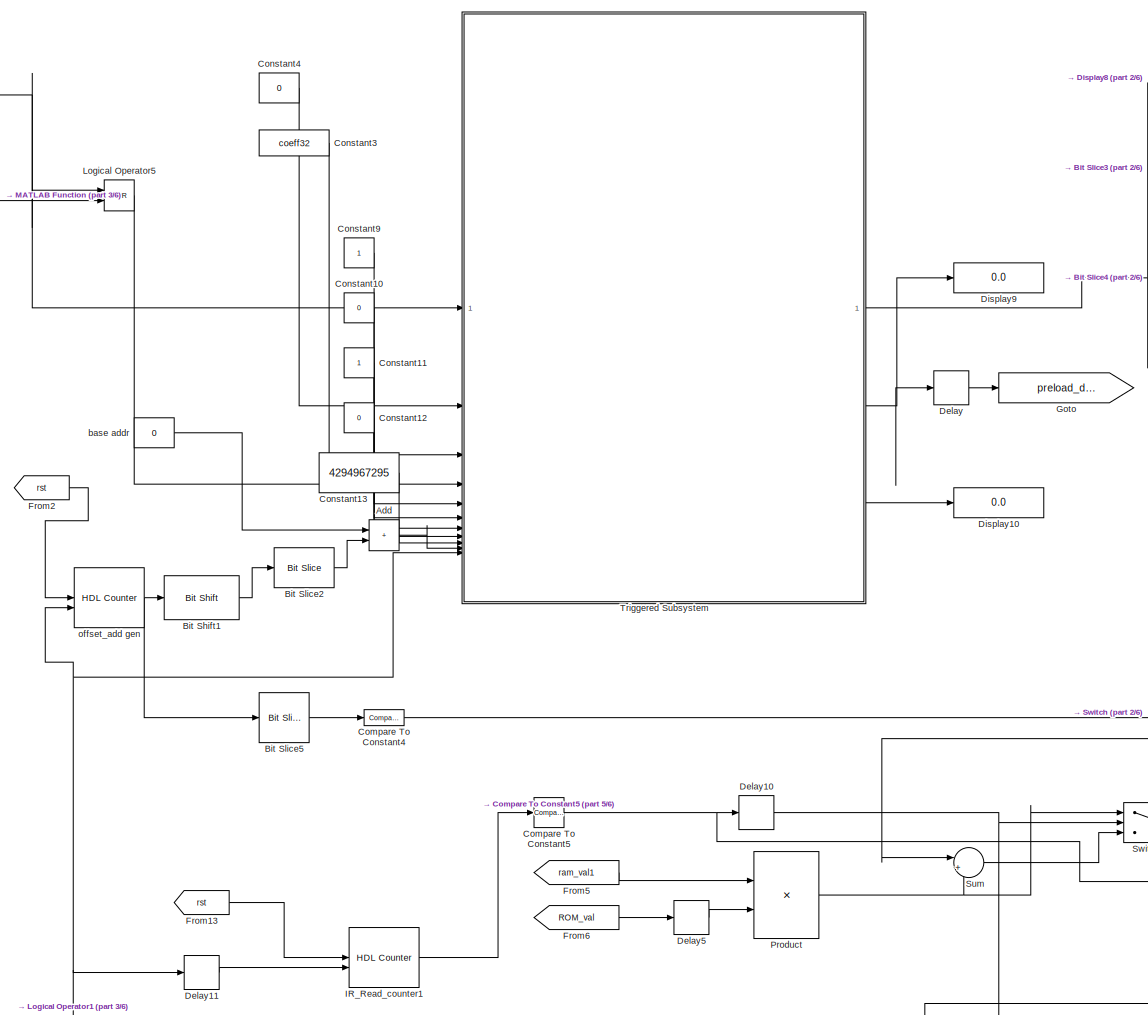
[diagram: root canvas - part 1/6, top center region]
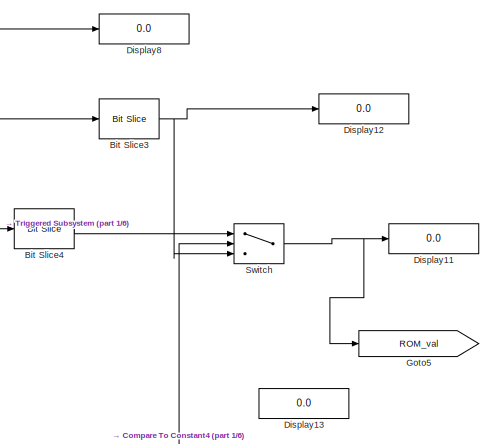
[diagram: root canvas - part 2/6, top right region]
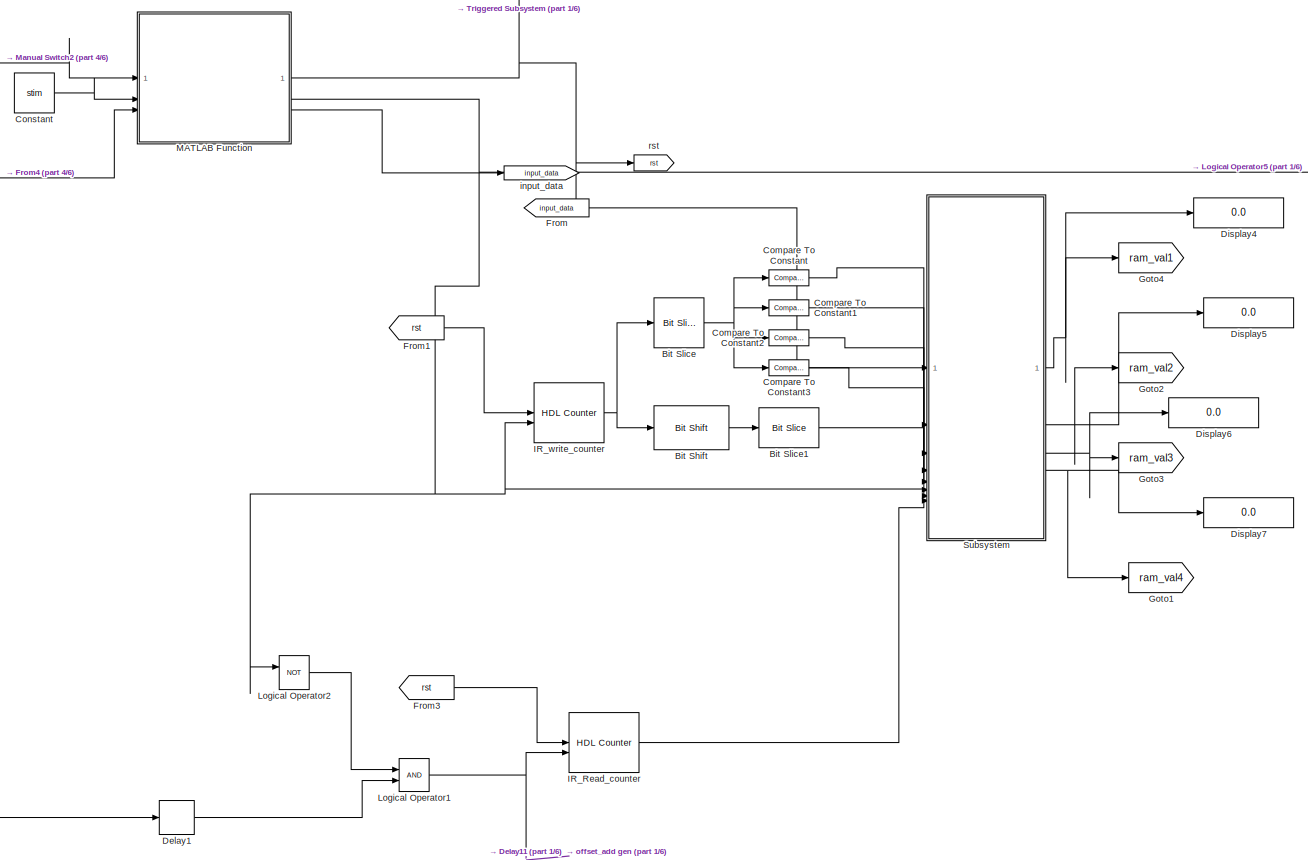
[diagram: root canvas - part 3/6, middle left region]
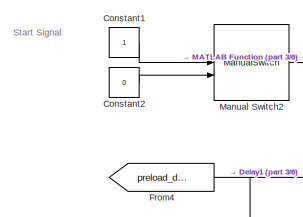
[diagram: root canvas - part 4/6, top left region]
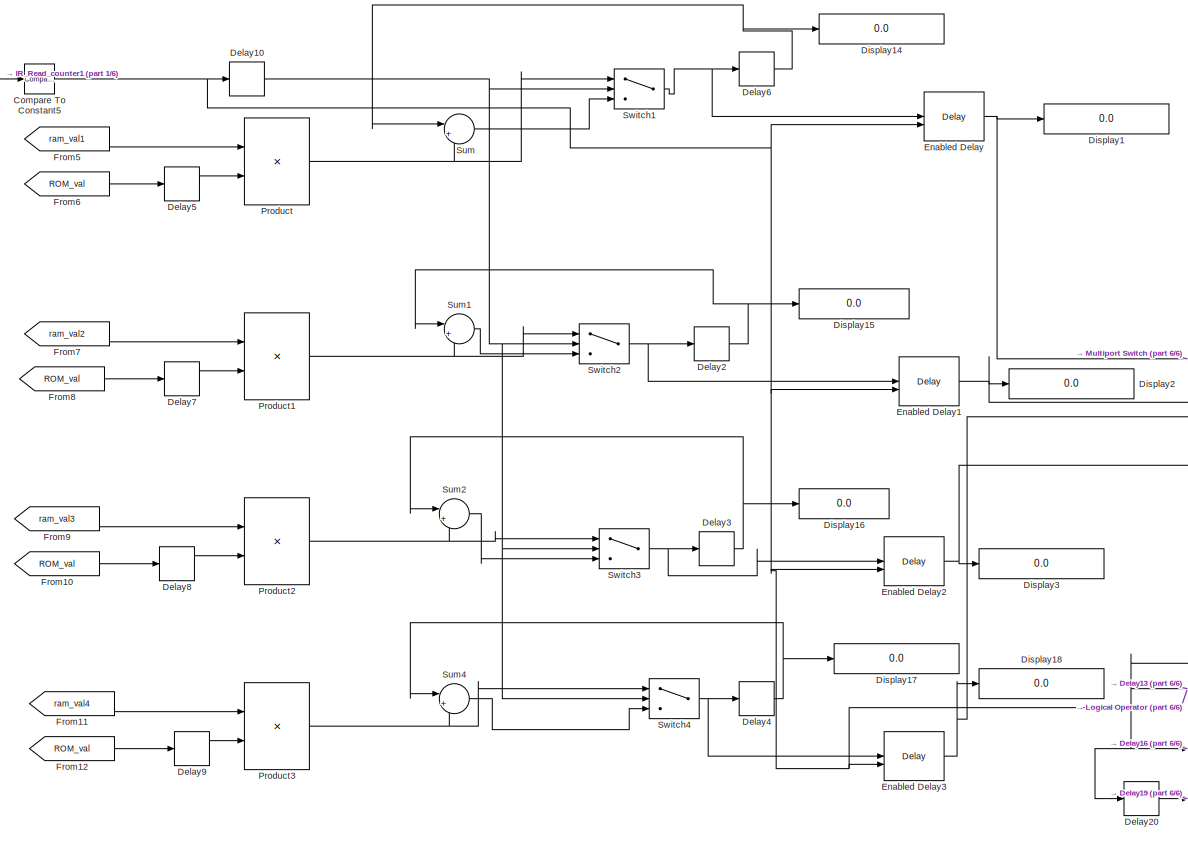
[diagram: root canvas - part 5/6, bottom center region]
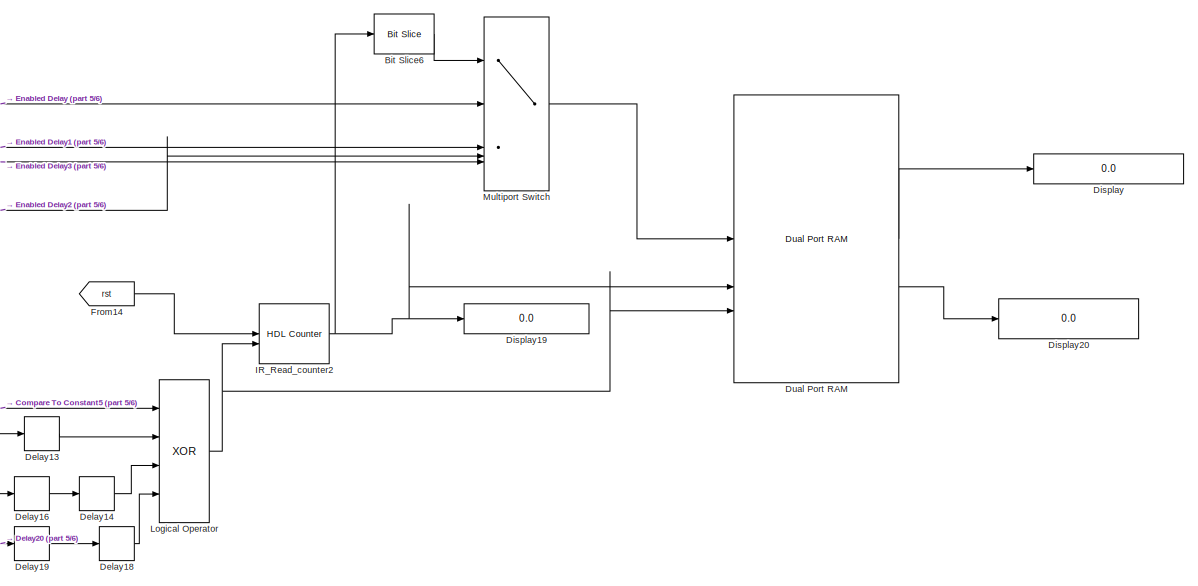
[diagram: root canvas - part 6/6, bottom right region]
MODEL slx_77660154b613
KIND model
CONFIG AbsTol = auto
CONFIG EnableMultiTasking = off
CONFIG FixedStep = 1
CONFIG MaxStep = auto
CONFIG MinStep = auto
CONFIG RelTol = 1e-3
CONFIG SampleTimeConstraint = Unconstrained
CONFIG SolverName = FixedStepDiscrete
CONFIG StartTime = 0.0
CONFIG StopTime = 2000
BLOCK [Sum] Add
  IconShape = rectangular
BLOCK [Reference] Bit Shift  REF=hdlsllib/Logic and Bit
Operations/Bit Shift
  SourceBlock = hdlsllib/Logic and Bit\nOperations/Bit Shift
  SourceType = Bit Shift
BLOCK [Reference] Bit Shift1  REF=hdlsllib/Logic and Bit
Operations/Bit Shift
  SourceBlock = hdlsllib/Logic and Bit\nOperations/Bit Shift
  SourceType = Bit Shift
BLOCK [Reference] Bit Slice  REF=hdlsllib/Logic and Bit
Operations/Bit Slice
  SourceBlock = hdlsllib/Logic and Bit\nOperations/Bit Slice
  SourceType = Bit Slice
BLOCK [Reference] Bit Slice1  REF=hdlsllib/Logic and Bit
Operations/Bit Slice
  SourceBlock = hdlsllib/Logic and Bit\nOperations/Bit Slice
  SourceType = Bit Slice
BLOCK [Reference] Bit Slice2  REF=hdlsllib/Logic and Bit
Operations/Bit Slice
  SourceBlock = hdlsllib/Logic and Bit\nOperations/Bit Slice
  SourceType = Bit Slice
BLOCK [Reference] Bit Slice3  REF=hdlsllib/Logic and Bit
Operations/Bit Slice
  SourceBlock = hdlsllib/Logic and Bit\nOperations/Bit Slice
  SourceType = Bit Slice
BLOCK [Reference] Bit Slice4  REF=hdlsllib/Logic and Bit
Operations/Bit Slice
  SourceBlock = hdlsllib/Logic and Bit\nOperations/Bit Slice
  SourceType = Bit Slice
BLOCK [Reference] Bit Slice5  REF=hdlsllib/Logic and Bit
Operations/Bit Slice
  SourceBlock = hdlsllib/Logic and Bit\nOperations/Bit Slice
  SourceType = Bit Slice
BLOCK [Reference] Bit Slice6  REF=hdlsllib/Logic and Bit
Operations/Bit Slice
  SourceBlock = hdlsllib/Logic and Bit\nOperations/Bit Slice
  SourceType = Bit Slice
BLOCK [Reference] Compare To Constant  REF=hdlsllib/Logic and Bit
Operations/Compare
To Constant
  SourceBlock = hdlsllib/Logic and Bit\nOperations/Compare\nTo Constant
  SourceType = Compare To Constant
BLOCK [Reference] Compare To Constant1  REF=hdlsllib/Logic and Bit
Operations/Compare
To Constant
  SourceBlock = hdlsllib/Logic and Bit\nOperations/Compare\nTo Constant
  SourceType = Compare To Constant
BLOCK [Reference] Compare To Constant2  REF=hdlsllib/Logic and Bit
Operations/Compare
To Constant
  SourceBlock = hdlsllib/Logic and Bit\nOperations/Compare\nTo Constant
  SourceType = Compare To Constant
BLOCK [Reference] Compare To Constant3  REF=hdlsllib/Logic and Bit
Operations/Compare
To Constant
  SourceBlock = hdlsllib/Logic and Bit\nOperations/Compare\nTo Constant
  SourceType = Compare To Constant
BLOCK [Reference] Compare To Constant4  REF=hdlsllib/Logic and Bit
Operations/Compare
To Constant
  SourceBlock = hdlsllib/Logic and Bit\nOperations/Compare\nTo Constant
  SourceType = Compare To Constant
BLOCK [Reference] Compare To Constant5  REF=simulink/Logic and Bit
Operations/Compare
To Constant
  SourceBlock = simulink/Logic and Bit\nOperations/Compare\nTo Constant
  SourceType = Compare To Constant
BLOCK [Constant] Constant
  SampleTime = -1
  Value = stim
  VectorParams1D = off
BLOCK [Constant] Constant1
  OutDataTypeStr = boolean
BLOCK [Constant] Constant10
  OutDataTypeStr = boolean
  Value = 0
BLOCK [Constant] Constant11
  OutDataTypeStr = boolean
BLOCK [Constant] Constant12
  OutDataTypeStr = boolean
  Value = 0
BLOCK [Constant] Constant13
  OutDataTypeStr = uint32
  SampleTime = -1
  Value = 4294967295
  VectorParams1D = off
BLOCK [Constant] Constant2
  OutDataTypeStr = boolean
  Value = 0
BLOCK [Constant] Constant3
  OutDataTypeStr = uint32
  SampleTime = -1
  Value = coeff32
  VectorParams1D = off
BLOCK [Constant] Constant4
  OutDataTypeStr = uint16
  SampleTime = -1
  Value = 0
  VectorParams1D = off
BLOCK [Constant] Constant9
  OutDataTypeStr = boolean
BLOCK [Delay] Delay
  DelayLength = 1
  InitialCondition = 0
  InputPortMap = u0
BLOCK [Delay] Delay1
  DelayLength = 1
  InitialCondition = 0
  InputPortMap = u0
BLOCK [Delay] Delay10
  DelayLength = 1
  InitialCondition = 0
  InputPortMap = u0
BLOCK [Delay] Delay11
  DelayLength = 1
  InitialCondition = 0
  InputPortMap = u0
BLOCK [Delay] Delay13
  DelayLength = 1
  InitialCondition = 0
  InputPortMap = u0
BLOCK [Delay] Delay14
  DelayLength = 1
  InitialCondition = 0
  InputPortMap = u0
BLOCK [Delay] Delay16
  DelayLength = 1
  InitialCondition = 0
  InputPortMap = u0
BLOCK [Delay] Delay18
  DelayLength = 1
  InitialCondition = 0
  InputPortMap = u0
BLOCK [Delay] Delay19
  DelayLength = 1
  InitialCondition = 0
  InputPortMap = u0
BLOCK [Delay] Delay2
  DelayLength = 1
  InitialCondition = 0
  InputPortMap = u0
BLOCK [Delay] Delay20
  DelayLength = 1
  InitialCondition = 0
  InputPortMap = u0
BLOCK [Delay] Delay3
  DelayLength = 1
  InitialCondition = 0
  InputPortMap = u0
BLOCK [Delay] Delay4
  DelayLength = 1
  InitialCondition = 0
  InputPortMap = u0
BLOCK [Delay] Delay5
  DelayLength = 1
  InitialCondition = 0
  InputPortMap = u0
BLOCK [Delay] Delay6
  DelayLength = 1
  InitialCondition = 0
  InputPortMap = u0
BLOCK [Delay] Delay7
  DelayLength = 1
  InitialCondition = 0
  InputPortMap = u0
BLOCK [Delay] Delay8
  DelayLength = 1
  InitialCondition = 0
  InputPortMap = u0
BLOCK [Delay] Delay9
  DelayLength = 1
  InitialCondition = 0
  InputPortMap = u0
BLOCK [Display] Display
  Decimation = 1
  Format = long
BLOCK [Display] Display1
  Decimation = 1
  Format = long
BLOCK [Display] Display10
  Decimation = 1
BLOCK [Display] Display11
  Decimation = 1
BLOCK [Display] Display12
  Decimation = 1
BLOCK [Display] Display13
  Decimation = 1
BLOCK [Display] Display14
  Decimation = 1
  Format = long
BLOCK [Display] Display15
  Decimation = 1
  Format = long
BLOCK [Display] Display16
  Decimation = 1
  Format = long
BLOCK [Display] Display17
  Decimation = 1
  Format = long
BLOCK [Display] Display18
  Decimation = 1
  Format = long
BLOCK [Display] Display19
  Decimation = 1
  Format = long
BLOCK [Display] Display2
  Decimation = 1
  Format = long
BLOCK [Display] Display20
  Decimation = 1
  Format = long
BLOCK [Display] Display3
  Decimation = 1
  Format = long
BLOCK [Display] Display4
  Decimation = 1
BLOCK [Display] Display5
  Decimation = 1
BLOCK [Display] Display6
  Decimation = 1
BLOCK [Display] Display7
  Decimation = 1
BLOCK [Display] Display8
  Decimation = 1
BLOCK [Display] Display9
  Decimation = 1
BLOCK [Reference] Dual Port RAM  REF=hdlsllib/HDL RAMs/Dual Port RAM
  SourceBlock = hdlsllib/HDL RAMs/Dual Port RAM
  SourceType = Dual-port RAM
BLOCK [Delay] Enabled Delay
  DelayLength = 1
  InputPortMap = u0,e6
  ShowEnablePort = on
BLOCK [Delay] Enabled Delay1
  DelayLength = 1
  InputPortMap = u0,e6
  ShowEnablePort = on
BLOCK [Delay] Enabled Delay2
  DelayLength = 1
  InputPortMap = u0,e6
  ShowEnablePort = on
BLOCK [Delay] Enabled Delay3
  DelayLength = 1
  InputPortMap = u0,e6
  ShowEnablePort = on
BLOCK [From] From
  GotoTag = input_data
BLOCK [From] From1
  GotoTag = rst
BLOCK [From] From10
  GotoTag = ROM_val
BLOCK [From] From11
  GotoTag = ram_val4
BLOCK [From] From12
  GotoTag = ROM_val
BLOCK [From] From13
  GotoTag = rst
BLOCK [From] From14
  GotoTag = rst
BLOCK [From] From2
  GotoTag = rst
BLOCK [From] From3
  GotoTag = rst
BLOCK [From] From4
  GotoTag = preload_done
BLOCK [From] From5
  GotoTag = ram_val1
BLOCK [From] From6
  GotoTag = ROM_val
BLOCK [From] From7
  GotoTag = ram_val2
BLOCK [From] From8
  GotoTag = ROM_val
BLOCK [From] From9
  GotoTag = ram_val3
BLOCK [Goto] Goto
  GotoTag = preload_done
BLOCK [Goto] Goto1
  GotoTag = ram_val4
BLOCK [Goto] Goto2
  GotoTag = ram_val2
BLOCK [Goto] Goto3
  GotoTag = ram_val3
  NameLocation = top
BLOCK [Goto] Goto4
  GotoTag = ram_val1
BLOCK [Goto] Goto5
  GotoTag = ROM_val
BLOCK [Reference] IR_Read_counter  REF=hdlsllib/Sources/HDL Counter
  SourceBlock = hdlsllib/Sources/HDL Counter
  SourceType = HDL Counter
BLOCK [Reference] IR_Read_counter1  REF=hdlsllib/Sources/HDL Counter
  SourceBlock = hdlsllib/Sources/HDL Counter
  SourceType = HDL Counter
BLOCK [Reference] IR_Read_counter2  REF=hdlsllib/Sources/HDL Counter
  SourceBlock = hdlsllib/Sources/HDL Counter
  SourceType = HDL Counter
BLOCK [Reference] IR_write_counter  REF=hdlsllib/Sources/HDL Counter
  SourceBlock = hdlsllib/Sources/HDL Counter
  SourceType = HDL Counter
BLOCK [Logic] Logical Operator
  AllPortsSameDT = off
  Inputs = 4
  Operator = XOR
  OutDataTypeStr = boolean
BLOCK [Logic] Logical Operator1
  AllPortsSameDT = off
  OutDataTypeStr = boolean
BLOCK [Logic] Logical Operator2
  AllPortsSameDT = off
  Operator = NOT
  OutDataTypeStr = boolean
BLOCK [Logic] Logical Operator5
  AllPortsSameDT = off
  Operator = NOR
  OutDataTypeStr = boolean
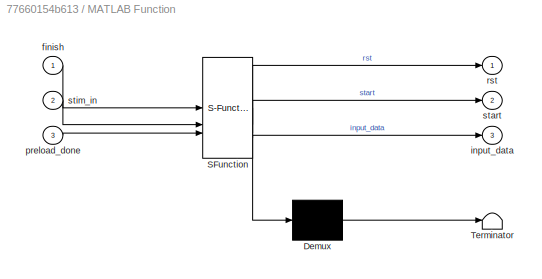
BLOCK [SubSystem] MATLAB Function
  ErrorFcn = Stateflow.Translate.translate
  LibrarySourceBlock = simulink/User-Defined\nFunctions/MATLAB Function
  PermitHierarchicalResolution = ExplicitOnly
  SFBlockType = MATLAB Function
  TreatAsAtomicUnit = on
BLOCK [Demux] MATLAB Function/ Demux 
  Outputs = 1
BLOCK [S-Function] MATLAB Function/ SFunction 
  EnableBusSupport = on
  FunctionName = sf_sfun
  PortCounts = [3 4]
  SFcnIsStateOwnerBlock = off
  SFunctionDeploymentMode = off
  Tag = Stateflow S-Function 2
BLOCK [Terminator] MATLAB Function/ Terminator 
BLOCK [Inport] MATLAB Function/finish
BLOCK [Outport] MATLAB Function/input_data
  Port = 3
BLOCK [Inport] MATLAB Function/preload_done
  Port = 3
BLOCK [Outport] MATLAB Function/rst
BLOCK [Outport] MATLAB Function/start
  Port = 2
BLOCK [Inport] MATLAB Function/stim_in
  Port = 2
BLOCK [ManualSwitch] Manual Switch2
  CurrentSetting = 0
BLOCK [MultiPortSwitch] Multiport Switch
  DataPortOrder = Zero-based contiguous
  InputSameDT = off
  Inputs = 4
  SaturateOnIntegerOverflow = off
  zeroidx = on
BLOCK [Product] Product
  OutDataTypeStr = uint32
BLOCK [Product] Product1
  OutDataTypeStr = uint32
  RndMeth = Nearest
BLOCK [Product] Product2
  OutDataTypeStr = uint32
BLOCK [Product] Product3
  OutDataTypeStr = uint32
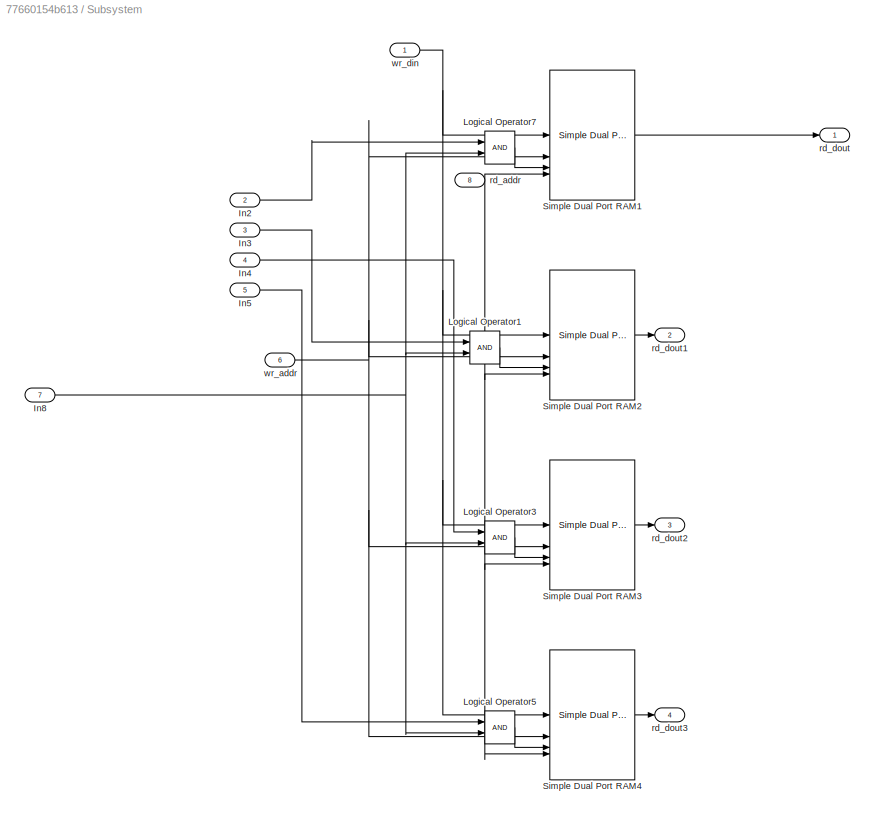
BLOCK [SubSystem] Subsystem
BLOCK [Inport] Subsystem/In2
  Port = 2
BLOCK [Inport] Subsystem/In3
  Port = 3
BLOCK [Inport] Subsystem/In4
  Port = 4
BLOCK [Inport] Subsystem/In5
  Port = 5
BLOCK [Inport] Subsystem/In8
  Port = 7
BLOCK [Logic] Subsystem/Logical Operator1
  AllPortsSameDT = off
  NameLocation = right
  OutDataTypeStr = boolean
BLOCK [Logic] Subsystem/Logical Operator3
  AllPortsSameDT = off
  NameLocation = right
  OutDataTypeStr = boolean
BLOCK [Logic] Subsystem/Logical Operator5
  AllPortsSameDT = off
  NameLocation = right
  OutDataTypeStr = boolean
BLOCK [Logic] Subsystem/Logical Operator7
  AllPortsSameDT = off
  NameLocation = right
  OutDataTypeStr = boolean
BLOCK [Reference] Subsystem/Simple Dual Port RAM1  REF=hdlsllib/HDL RAMs/Simple Dual Port RAM
  SourceBlock = hdlsllib/HDL RAMs/Simple Dual Port RAM
  SourceType = Simple Dual-port RAM
BLOCK [Reference] Subsystem/Simple Dual Port RAM2  REF=hdlsllib/HDL RAMs/Simple Dual Port RAM
  SourceBlock = hdlsllib/HDL RAMs/Simple Dual Port RAM
  SourceType = Simple Dual-port RAM
BLOCK [Reference] Subsystem/Simple Dual Port RAM3  REF=hdlsllib/HDL RAMs/Simple Dual Port RAM
  SourceBlock = hdlsllib/HDL RAMs/Simple Dual Port RAM
  SourceType = Simple Dual-port RAM
BLOCK [Reference] Subsystem/Simple Dual Port RAM4  REF=hdlsllib/HDL RAMs/Simple Dual Port RAM
  SourceBlock = hdlsllib/HDL RAMs/Simple Dual Port RAM
  SourceType = Simple Dual-port RAM
BLOCK [Inport] Subsystem/rd_addr
  Port = 8
BLOCK [Outport] Subsystem/rd_dout
BLOCK [Outport] Subsystem/rd_dout1
  Port = 2
BLOCK [Outport] Subsystem/rd_dout2
  Port = 3
BLOCK [Outport] Subsystem/rd_dout3
  Port = 4
BLOCK [Inport] Subsystem/wr_addr
  Port = 6
BLOCK [Inport] Subsystem/wr_din
BLOCK [Sum] Sum
  Inputs = |++
BLOCK [Sum] Sum1
  Inputs = |++
BLOCK [Sum] Sum2
  Inputs = |++
BLOCK [Sum] Sum4
  Inputs = |++
BLOCK [Switch] Switch
  InputSameDT = off
  SaturateOnIntegerOverflow = off
BLOCK [Switch] Switch1
  InputSameDT = off
  SaturateOnIntegerOverflow = off
BLOCK [Switch] Switch2
  InputSameDT = off
  SaturateOnIntegerOverflow = off
BLOCK [Switch] Switch3
  InputSameDT = off
  SaturateOnIntegerOverflow = off
BLOCK [Switch] Switch4
  InputSameDT = off
  SaturateOnIntegerOverflow = off
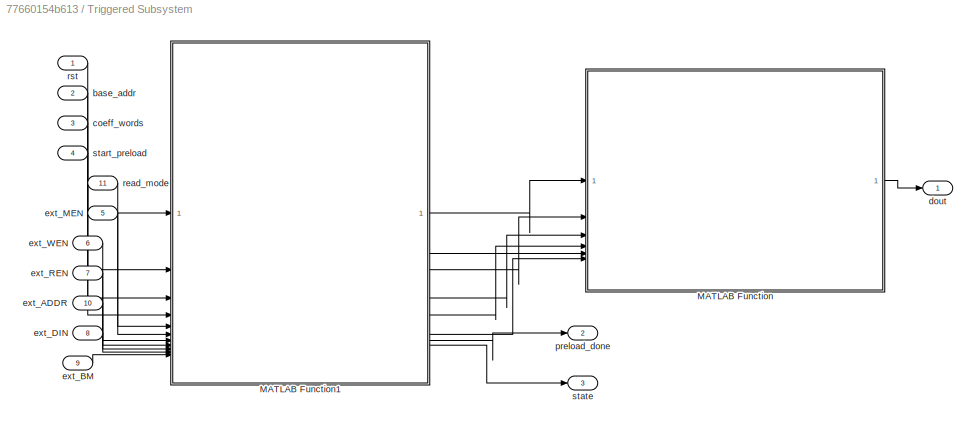
BLOCK [SubSystem] Triggered Subsystem
  TreatAsAtomicUnit = on
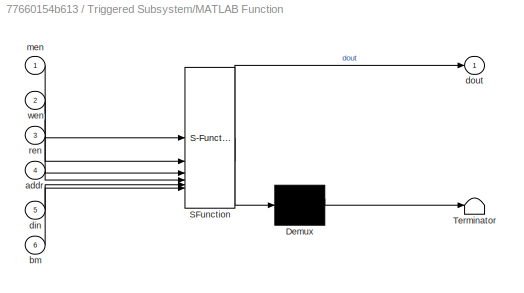
BLOCK [SubSystem] Triggered Subsystem/MATLAB Function
  ErrorFcn = Stateflow.Translate.translate
  LibrarySourceBlock = simulink/User-Defined\nFunctions/MATLAB Function
  PermitHierarchicalResolution = ExplicitOnly
  SFBlockType = MATLAB Function
  TreatAsAtomicUnit = on
BLOCK [Demux] Triggered Subsystem/MATLAB Function/ Demux 
  Outputs = 1
BLOCK [S-Function] Triggered Subsystem/MATLAB Function/ SFunction 
  EnableBusSupport = on
  FunctionName = sf_sfun
  PortCounts = [6 2]
  SFcnIsStateOwnerBlock = off
  SFunctionDeploymentMode = off
  Tag = Stateflow S-Function 1
BLOCK [Terminator] Triggered Subsystem/MATLAB Function/ Terminator 
BLOCK [Inport] Triggered Subsystem/MATLAB Function/addr
  Port = 4
BLOCK [Inport] Triggered Subsystem/MATLAB Function/bm
  Port = 6
BLOCK [Inport] Triggered Subsystem/MATLAB Function/din
  Port = 5
BLOCK [Outport] Triggered Subsystem/MATLAB Function/dout
BLOCK [Inport] Triggered Subsystem/MATLAB Function/men
BLOCK [Inport] Triggered Subsystem/MATLAB Function/ren
  Port = 3
BLOCK [Inport] Triggered Subsystem/MATLAB Function/wen
  Port = 2
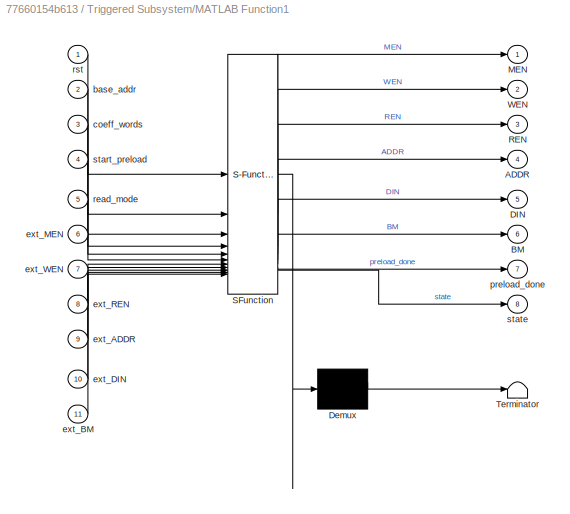
BLOCK [SubSystem] Triggered Subsystem/MATLAB Function1
  ErrorFcn = Stateflow.Translate.translate
  LibrarySourceBlock = simulink/User-Defined\nFunctions/MATLAB Function
  PermitHierarchicalResolution = ExplicitOnly
  SFBlockType = MATLAB Function
  TreatAsAtomicUnit = on
BLOCK [Demux] Triggered Subsystem/MATLAB Function1/ Demux 
  Outputs = 1
BLOCK [S-Function] Triggered Subsystem/MATLAB Function1/ SFunction 
  EnableBusSupport = on
  FunctionName = sf_sfun
  PortCounts = [11 9]
  SFcnIsStateOwnerBlock = off
  SFunctionDeploymentMode = off
  Tag = Stateflow S-Function 3
BLOCK [Terminator] Triggered Subsystem/MATLAB Function1/ Terminator 
BLOCK [Outport] Triggered Subsystem/MATLAB Function1/ADDR
  Port = 4
BLOCK [Outport] Triggered Subsystem/MATLAB Function1/BM
  Port = 6
BLOCK [Outport] Triggered Subsystem/MATLAB Function1/DIN
  Port = 5
BLOCK [Outport] Triggered Subsystem/MATLAB Function1/MEN
BLOCK [Outport] Triggered Subsystem/MATLAB Function1/REN
  Port = 3
BLOCK [Outport] Triggered Subsystem/MATLAB Function1/WEN
  Port = 2
BLOCK [Inport] Triggered Subsystem/MATLAB Function1/base_addr
  Port = 2
BLOCK [Inport] Triggered Subsystem/MATLAB Function1/coeff_words
  Port = 3
BLOCK [Inport] Triggered Subsystem/MATLAB Function1/ext_ADDR
  Port = 9
BLOCK [Inport] Triggered Subsystem/MATLAB Function1/ext_BM
  Port = 11
BLOCK [Inport] Triggered Subsystem/MATLAB Function1/ext_DIN
  Port = 10
BLOCK [Inport] Triggered Subsystem/MATLAB Function1/ext_MEN
  Port = 6
BLOCK [Inport] Triggered Subsystem/MATLAB Function1/ext_REN
  Port = 8
BLOCK [Inport] Triggered Subsystem/MATLAB Function1/ext_WEN
  Port = 7
BLOCK [Outport] Triggered Subsystem/MATLAB Function1/preload_done
  Port = 7
BLOCK [Inport] Triggered Subsystem/MATLAB Function1/read_mode
  Port = 5
BLOCK [Inport] Triggered Subsystem/MATLAB Function1/rst
BLOCK [Inport] Triggered Subsystem/MATLAB Function1/start_preload
  Port = 4
BLOCK [Outport] Triggered Subsystem/MATLAB Function1/state
  Port = 8
BLOCK [Inport] Triggered Subsystem/base_addr
  Port = 2
BLOCK [Inport] Triggered Subsystem/coeff_words
  Port = 3
BLOCK [Outport] Triggered Subsystem/dout
BLOCK [Inport] Triggered Subsystem/ext_ADDR
  Port = 10
BLOCK [Inport] Triggered Subsystem/ext_BM
  Port = 9
BLOCK [Inport] Triggered Subsystem/ext_DIN
  Port = 8
BLOCK [Inport] Triggered Subsystem/ext_MEN
  Port = 5
BLOCK [Inport] Triggered Subsystem/ext_REN
  Port = 7
BLOCK [Inport] Triggered Subsystem/ext_WEN
  Port = 6
BLOCK [Outport] Triggered Subsystem/preload_done
  Port = 2
  VectorParamsAs1DForOutWhenUnconnected = off
BLOCK [Inport] Triggered Subsystem/read_mode
  Port = 11
BLOCK [Inport] Triggered Subsystem/rst
BLOCK [Inport] Triggered Subsystem/start_preload
  Port = 4
BLOCK [Outport] Triggered Subsystem/state
  Port = 3
  VectorParamsAs1DForOutWhenUnconnected = off
BLOCK [Constant] base addr
  OutDataTypeStr = uint16
  SampleTime = -1
  Value = 0
  VectorParams1D = off
BLOCK [Goto] input_data
  GotoTag = input_data
BLOCK [Reference] offset_add gen  REF=hdlsllib/Sources/HDL Counter
  SourceBlock = hdlsllib/Sources/HDL Counter
  SourceType = HDL Counter
BLOCK [Goto] rst
  GotoTag = rst
ANNOTATION (root): Start Signal
LINE Add:1 -> Triggered Subsystem:10
LINE Bit Shift1:1 -> Bit Slice2:1
LINE Bit Shift:1 -> Bit Slice1:1
LINE Bit Slice1:1 -> Subsystem:6
LINE Bit Slice2:1 -> Add:2
NET Bit Slice3:1 -> Display12:1, Switch:3
LINE Bit Slice4:1 -> Switch:1
LINE Bit Slice5:1 -> Compare To Constant4:1
LINE Bit Slice6:1 -> Multiport Switch:1
NET Bit Slice:1 -> Compare To Constant1:1, Compare To Constant2:1, Compare To Constant3:1, Compare To Constant:1
LINE Compare To Constant1:1 -> Subsystem:3
LINE Compare To Constant2:1 -> Subsystem:4
LINE Compare To Constant3:1 -> Subsystem:5
LINE Compare To Constant4:1 -> Switch:2
NET Compare To Constant5:1 -> Delay10:1, Delay13:1, Delay16:1, Delay20:1, Enabled Delay1:2, Enabled Delay2:2, Enabled Delay3:2, Enabled Delay:2, Logical Operator:1
LINE Compare To Constant:1 -> Subsystem:2
LINE Constant10:1 -> Triggered Subsystem:6
LINE Constant11:1 -> Triggered Subsystem:7
LINE Constant12:1 -> Triggered Subsystem:8
LINE Constant13:1 -> Triggered Subsystem:9
LINE Constant1:1 -> Manual Switch2:1
LINE Constant2:1 -> Manual Switch2:2
LINE Constant3:1 -> Triggered Subsystem:3
LINE Constant4:1 -> Triggered Subsystem:2
LINE Constant9:1 -> Triggered Subsystem:5
LINE Constant:1 -> MATLAB Function:2
NET Delay10:1 -> Switch1:2, Switch2:2, Switch3:2, Switch4:2
LINE Delay11:1 -> IR_Read_counter1:2
LINE Delay13:1 -> Logical Operator:2
LINE Delay14:1 -> Logical Operator:3
LINE Delay16:1 -> Delay14:1
LINE Delay18:1 -> Logical Operator:4
LINE Delay19:1 -> Delay18:1
LINE Delay1:1 -> Logical Operator1:2
LINE Delay20:1 -> Delay19:1
NET Delay2:1 -> Display15:1, Sum1:1
NET Delay3:1 -> Display16:1, Sum2:1
NET Delay4:1 -> Display17:1, Sum4:1
LINE Delay5:1 -> Product:2
NET Delay6:1 -> Display14:1, Sum:1
LINE Delay7:1 -> Product1:2
LINE Delay8:1 -> Product2:2
LINE Delay9:1 -> Product3:2
LINE Delay:1 -> Goto:1
LINE Dual Port RAM:1 -> Display:1
LINE Dual Port RAM:2 -> Display20:1
NET Enabled Delay1:1 -> Display2:1, Multiport Switch:3
NET Enabled Delay2:1 -> Display3:1, Multiport Switch:4
NET Enabled Delay3:1 -> Display18:1, Multiport Switch:5
NET Enabled Delay:1 -> Display1:1, Multiport Switch:2
LINE From10:1 -> Delay8:1
LINE From11:1 -> Product3:1
LINE From12:1 -> Delay9:1
LINE From13:1 -> IR_Read_counter1:1
LINE From14:1 -> IR_Read_counter2:1
LINE From1:1 -> IR_write_counter:1
LINE From2:1 -> offset_add gen:1
LINE From3:1 -> IR_Read_counter:1
NET From4:1 -> Delay1:1, MATLAB Function:3
LINE From5:1 -> Product:1
LINE From6:1 -> Delay5:1
LINE From7:1 -> Product1:1
LINE From8:1 -> Delay7:1
LINE From9:1 -> Product2:1
LINE From:1 -> Subsystem:1
LINE IR_Read_counter1:1 -> Compare To Constant5:1
NET IR_Read_counter2:1 -> Bit Slice6:1, Display19:1, Dual Port RAM:2
LINE IR_Read_counter:1 -> Subsystem:8
NET IR_write_counter:1 -> Bit Shift:1, Bit Slice:1
NET Logical Operator1:1 -> Delay11:1, IR_Read_counter:2, Triggered Subsystem:11, offset_add gen:2
LINE Logical Operator2:1 -> Logical Operator1:1
LINE Logical Operator5:1 -> Triggered Subsystem:4
NET Logical Operator:1 -> Dual Port RAM:3, IR_Read_counter2:2
NET MATLAB Function:1 -> Logical Operator5:1, Triggered Subsystem:1, rst:1
NET MATLAB Function:2 -> IR_write_counter:2, Logical Operator2:1, Logical Operator5:2, Subsystem:7
LINE MATLAB Function:3 -> input_data:1
LINE Manual Switch2:1 -> MATLAB Function:1
LINE Multiport Switch:1 -> Dual Port RAM:1
NET Product1:1 -> Sum1:2, Switch2:1
NET Product2:1 -> Sum2:2, Switch3:1
NET Product3:1 -> Sum4:2, Switch4:1
NET Product:1 -> Sum:2, Switch1:1
LINE Subsystem/In2:1 -> Subsystem/Logical Operator7:1
LINE Subsystem/In3:1 -> Subsystem/Logical Operator1:1
LINE Subsystem/In4:1 -> Subsystem/Logical Operator3:1
LINE Subsystem/In5:1 -> Subsystem/Logical Operator5:1
NET Subsystem/In8:1 -> Subsystem/Logical Operator1:2, Subsystem/Logical Operator3:2, Subsystem/Logical Operator5:2, Subsystem/Logical Operator7:2
LINE Subsystem/Logical Operator1:1 -> Subsystem/Simple Dual Port RAM2:3
LINE Subsystem/Logical Operator3:1 -> Subsystem/Simple Dual Port RAM3:3
LINE Subsystem/Logical Operator5:1 -> Subsystem/Simple Dual Port RAM4:3
LINE Subsystem/Logical Operator7:1 -> Subsystem/Simple Dual Port RAM1:3
LINE Subsystem/Simple Dual Port RAM1:1 -> Subsystem/rd_dout:1
LINE Subsystem/Simple Dual Port RAM2:1 -> Subsystem/rd_dout1:1
LINE Subsystem/Simple Dual Port RAM3:1 -> Subsystem/rd_dout2:1
LINE Subsystem/Simple Dual Port RAM4:1 -> Subsystem/rd_dout3:1
NET Subsystem/rd_addr:1 -> Subsystem/Simple Dual Port RAM1:4, Subsystem/Simple Dual Port RAM2:4, Subsystem/Simple Dual Port RAM3:4, Subsystem/Simple Dual Port RAM4:4
NET Subsystem/wr_addr:1 -> Subsystem/Simple Dual Port RAM1:2, Subsystem/Simple Dual Port RAM2:2, Subsystem/Simple Dual Port RAM3:2, Subsystem/Simple Dual Port RAM4:2
NET Subsystem/wr_din:1 -> Subsystem/Simple Dual Port RAM1:1, Subsystem/Simple Dual Port RAM2:1, Subsystem/Simple Dual Port RAM3:1, Subsystem/Simple Dual Port RAM4:1
NET Subsystem:1 -> Display4:1, Goto4:1
NET Subsystem:2 -> Display5:1, Goto2:1
NET Subsystem:3 -> Display6:1, Goto3:1
NET Subsystem:4 -> Display7:1, Goto1:1
LINE Sum1:1 -> Switch2:3
LINE Sum2:1 -> Switch3:3
LINE Sum4:1 -> Switch4:3
LINE Sum:1 -> Switch1:3
NET Switch1:1 -> Delay6:1, Enabled Delay:1
NET Switch2:1 -> Delay2:1, Enabled Delay1:1
NET Switch3:1 -> Delay3:1, Enabled Delay2:1
NET Switch4:1 -> Delay4:1, Enabled Delay3:1
NET Switch:1 -> Display11:1, Goto5:1
LINE Triggered Subsystem/MATLAB Function1:1 -> Triggered Subsystem/MATLAB Function:1
LINE Triggered Subsystem/MATLAB Function1:2 -> Triggered Subsystem/MATLAB Function:2
LINE Triggered Subsystem/MATLAB Function1:3 -> Triggered Subsystem/MATLAB Function:3
LINE Triggered Subsystem/MATLAB Function1:4 -> Triggered Subsystem/MATLAB Function:4
LINE Triggered Subsystem/MATLAB Function1:5 -> Triggered Subsystem/MATLAB Function:5
LINE Triggered Subsystem/MATLAB Function1:6 -> Triggered Subsystem/MATLAB Function:6
LINE Triggered Subsystem/MATLAB Function1:7 -> Triggered Subsystem/preload_done:1
LINE Triggered Subsystem/MATLAB Function1:8 -> Triggered Subsystem/state:1
LINE Triggered Subsystem/MATLAB Function:1 -> Triggered Subsystem/dout:1
LINE Triggered Subsystem/base_addr:1 -> Triggered Subsystem/MATLAB Function1:2
LINE Triggered Subsystem/coeff_words:1 -> Triggered Subsystem/MATLAB Function1:3
LINE Triggered Subsystem/ext_ADDR:1 -> Triggered Subsystem/MATLAB Function1:9
LINE Triggered Subsystem/ext_BM:1 -> Triggered Subsystem/MATLAB Function1:11
LINE Triggered Subsystem/ext_DIN:1 -> Triggered Subsystem/MATLAB Function1:10
LINE Triggered Subsystem/ext_MEN:1 -> Triggered Subsystem/MATLAB Function1:6
LINE Triggered Subsystem/ext_REN:1 -> Triggered Subsystem/MATLAB Function1:8
LINE Triggered Subsystem/ext_WEN:1 -> Triggered Subsystem/MATLAB Function1:7
LINE Triggered Subsystem/read_mode:1 -> Triggered Subsystem/MATLAB Function1:5
LINE Triggered Subsystem/rst:1 -> Triggered Subsystem/MATLAB Function1:1
LINE Triggered Subsystem/start_preload:1 -> Triggered Subsystem/MATLAB Function1:4
NET Triggered Subsystem:1 -> Bit Slice3:1, Bit Slice4:1, Display8:1
NET Triggered Subsystem:2 -> Delay:1, Display9:1
LINE Triggered Subsystem:3 -> Display10:1
LINE base addr:1 -> Add:1
NET offset_add gen:1 -> Bit Shift1:1, Bit Slice5:1
note: NET lines group one-source signal fan-out (src -> all destinations, sorted); 1:1 wires keep LINE
CHART Triggered
Subsystem/MATLAB Function states=1 transitions=1
  STATE_LABEL 'eML_blk_kernel()'
  STATE_LABEL "SCRIPT:\nfunction dout  = sram_step(men, wen, ren, addr, din, bm)\npersistent mem dr\nif isempty(mem)\n    mem = zeros(512,1,'uint32');   % EXACT: 512 words\n    dr  = uint32(0);               % EXACT: 32-bit output reg\nend\n\nif men\n    if wen\n        old = mem(double(addr)+1);\n        new = bitor(bitand(old, bitcmp(uint32(bm))), bitand(uint32(din), uint32(bm)));\n        mem(double(addr)+1) = new;\n     ...<+165ch>"
CHART MATLAB Function states=1 transitions=1
  STATE_LABEL 'eML_blk_kernel()'
  STATE_LABEL 'SCRIPT:\nfunction [rst, start, input_data] = TB_Generator(finish, stim_in, preload_done)\n%#codegen\nRESET_CYCLES = uint16(5);\nSAMPLES_PER_MATRIX = uint16(32);\n\n% States:\n% 0=RESET_HOLD, 1=WAIT_PRELOAD, 2=STREAM, 3=WAIT_FINISH\npersistent state reset_cnt matrix_idx sample_idx finish_d\n\nif isempty(state)\n    state = uint8(0);\n    reset_cnt  = uint16(0);\n    matrix_idx = uint16(0);\n    sample_idx = uint...<+1733ch>'
CHART Triggered
Subsystem/MATLAB Function1 states=1 transitions=1
  STATE_LABEL 'eML_blk_kernel()'
  STATE_LABEL 'SCRIPT:\nfunction [MEN,WEN,REN,ADDR,DIN,BM, preload_done, state] = ...\n    rom_pin_mux_ctrl(rst, base_addr, coeff_words, start_preload, ...\n                     read_mode, ext_MEN, ext_WEN, ext_REN, ext_ADDR, ext_DIN, ext_BM)\n%#codegen\npersistent st idx done\nif isempty(st)\n    st   = uint8(0);   % 0=IDLE,1=PRELOAD,2=READ_PASS\n    idx  = uint16(0);\n    done = false;      % this is preload_done latch...<+1296ch>'
CHART  states=0 transitions=0
CHART  states=0 transitions=0
CHART  states=0 transitions=0
